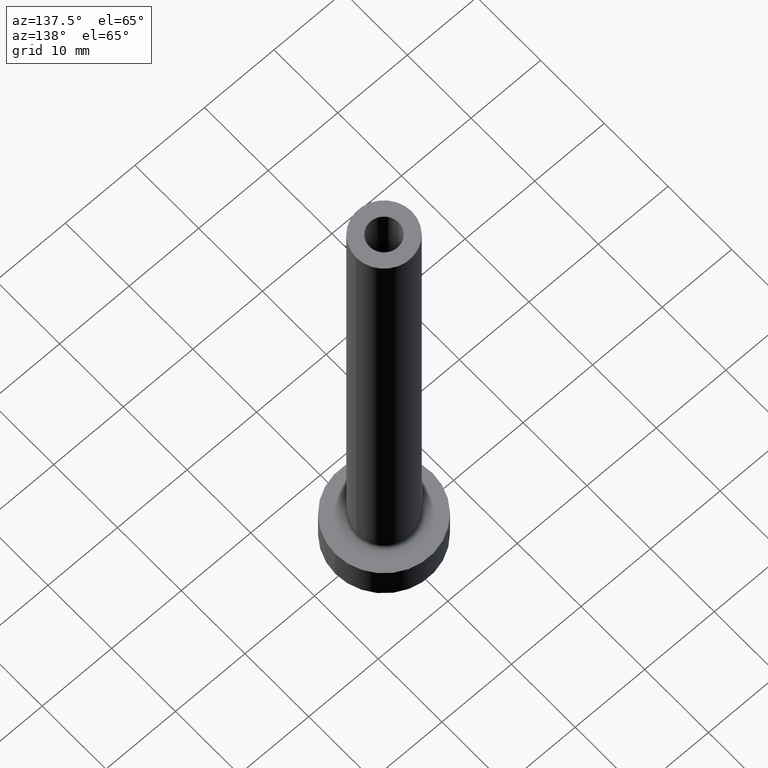
[diagram: clean part render]
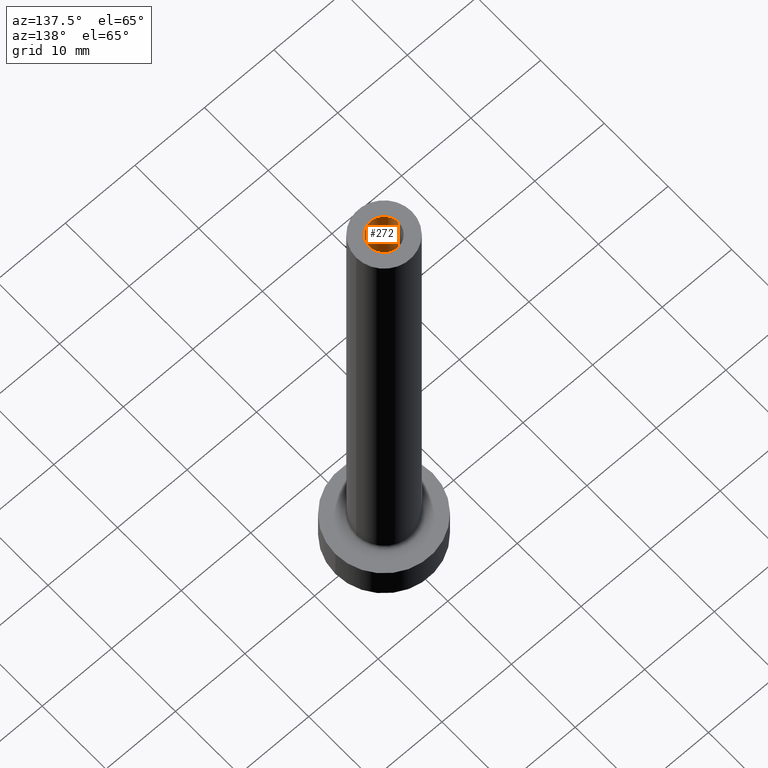
[diagram: same view with one face highlighted and labeled with its STEP entity id]
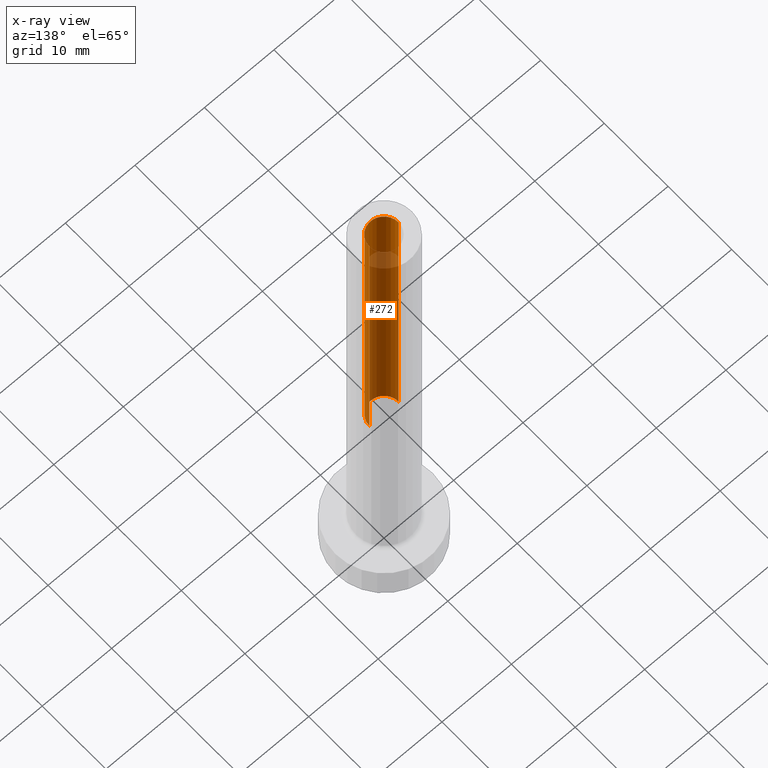
[diagram: x-ray of the same camera — body ghosted, the highlighted face saturated]
A machine part, auxiliary view. The second image highlights one B-rep face of the part: STEP entity #272.
The next image is the same camera in x-ray: the body ghosted, the highlighted face saturated — about 68% of this face is hidden behind the body in this view.
In plain terms, the highlighted cylindrical surface (edge-blend (fillet) strip) has radius 2.1 mm, axis along (0, 0, -1).
Its self-contained STEP definition (entity closure, byte-faithful):
#13 = AXIS2_PLACEMENT_3D ( 'NONE', #141, #327, #408 ) ;
#16 = VERTEX_POINT ( 'NONE', #176 ) ;
#17 = CIRCLE ( 'NONE', #411, 2.100000000000000089 ) ;
#73 = CARTESIAN_POINT ( 'NONE',  ( 2.100000000000000089, 2.571758278209441464E-16, 75.00000000000001421 ) ) ;
#79 = DIRECTION ( 'NONE',  ( 0.000000000000000000, 0.000000000000000000, -1.000000000000000000 ) ) ;
#89 = EDGE_CURVE ( 'NONE', #254, #16, #17, .T. ) ;
#94 = LINE ( 'NONE', #249, #224 ) ;
#99 = CARTESIAN_POINT ( 'NONE',  ( 0.000000000000000000, 0.000000000000000000, 30.00000000000001421 ) ) ;
#109 = LINE ( 'NONE', #187, #397 ) ;
#114 = DIRECTION ( 'NONE',  ( 0.000000000000000000, 0.000000000000000000, -1.000000000000000000 ) ) ;
#121 = ORIENTED_EDGE ( 'NONE', *, *, #206, .T. ) ;
#127 = VERTEX_POINT ( 'NONE', #73 ) ;
#141 = CARTESIAN_POINT ( 'NONE',  ( 0.000000000000000000, 0.000000000000000000, 75.00000000000001421 ) ) ;
#145 = AXIS2_PLACEMENT_3D ( 'NONE', #371, #79, #376 ) ;
#164 = DIRECTION ( 'NONE',  ( 0.000000000000000000, 0.000000000000000000, 1.000000000000000000 ) ) ;
#176 = CARTESIAN_POINT ( 'NONE',  ( 2.100000000000000089, 2.571758278209441464E-16, 30.00000000000001421 ) ) ;
#187 = CARTESIAN_POINT ( 'NONE',  ( 2.100000000000000089, 2.571758278209441464E-16, 75.00000000000001421 ) ) ;
#206 = EDGE_CURVE ( 'NONE', #209, #127, #440, .T. ) ;
#209 = VERTEX_POINT ( 'NONE', #296 ) ;
#217 = EDGE_CURVE ( 'NONE', #127, #16, #109, .T. ) ;
#220 = DIRECTION ( 'NONE',  ( 0.000000000000000000, 0.000000000000000000, -1.000000000000000000 ) ) ;
#224 = VECTOR ( 'NONE', #220, 1000.000000000000000 ) ;
#249 = CARTESIAN_POINT ( 'NONE',  ( -2.100000000000000089, 0.000000000000000000, 75.00000000000001421 ) ) ;
#254 = VERTEX_POINT ( 'NONE', #271 ) ;
#271 = CARTESIAN_POINT ( 'NONE',  ( -2.100000000000000089, 0.000000000000000000, 30.00000000000001421 ) ) ;
#272 = ADVANCED_FACE ( 'NONE', ( #434 ), #409, .F. ) ;
#296 = CARTESIAN_POINT ( 'NONE',  ( -2.100000000000000089, 0.000000000000000000, 75.00000000000001421 ) ) ;
#309 = DIRECTION ( 'NONE',  ( 1.000000000000000000, 0.000000000000000000, 0.000000000000000000 ) ) ;
#327 = DIRECTION ( 'NONE',  ( 0.000000000000000000, 0.000000000000000000, 1.000000000000000000 ) ) ;
#354 = ORIENTED_EDGE ( 'NONE', *, *, #89, .F. ) ;
#371 = CARTESIAN_POINT ( 'NONE',  ( 0.000000000000000000, 0.000000000000000000, 75.00000000000001421 ) ) ;
#376 = DIRECTION ( 'NONE',  ( -1.000000000000000000, 0.000000000000000000, 0.000000000000000000 ) ) ;
#397 = VECTOR ( 'NONE', #114, 1000.000000000000000 ) ;
#408 = DIRECTION ( 'NONE',  ( 1.000000000000000000, 0.000000000000000000, 0.000000000000000000 ) ) ;
#409 = CYLINDRICAL_SURFACE ( 'NONE', #145, 2.100000000000000089 ) ;
#411 = AXIS2_PLACEMENT_3D ( 'NONE', #99, #164, #309 ) ;
#413 = ORIENTED_EDGE ( 'NONE', *, *, #446, .F. ) ;
#421 = EDGE_LOOP ( 'NONE', ( #121, #447, #354, #413 ) ) ;
#434 = FACE_OUTER_BOUND ( 'NONE', #421, .T. ) ;
#440 = CIRCLE ( 'NONE', #13, 2.100000000000000089 ) ;
#446 = EDGE_CURVE ( 'NONE', #209, #254, #94, .T. ) ;
#447 = ORIENTED_EDGE ( 'NONE', *, *, #217, .T. ) ;